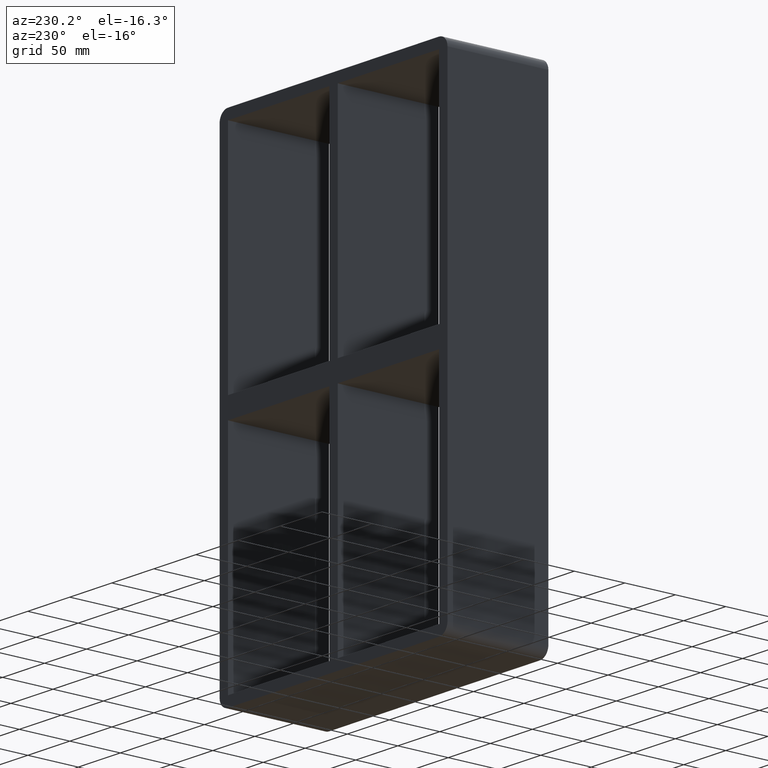
[diagram: clean part render]
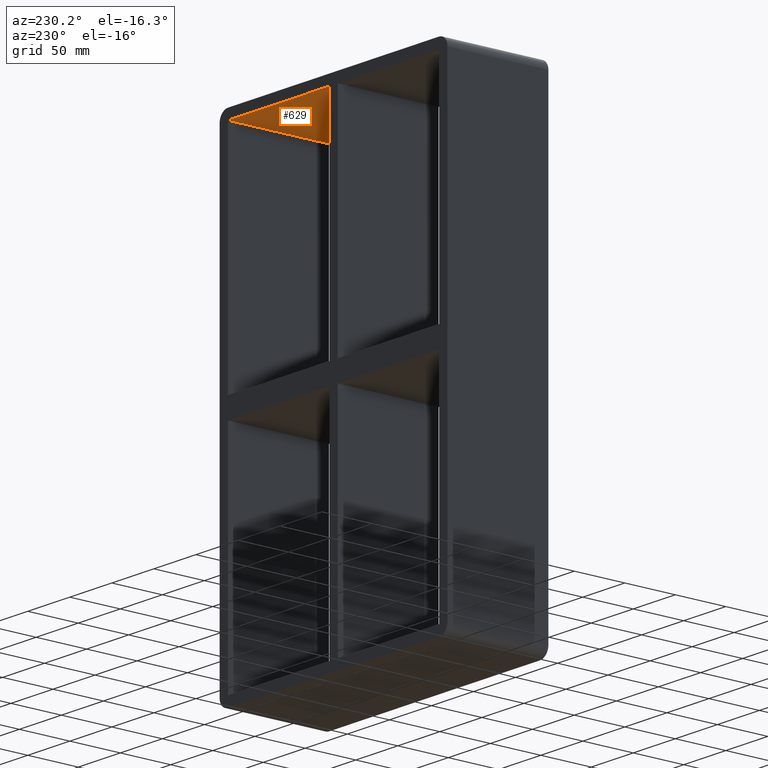
[diagram: same view with one face highlighted and labeled with its STEP entity id]
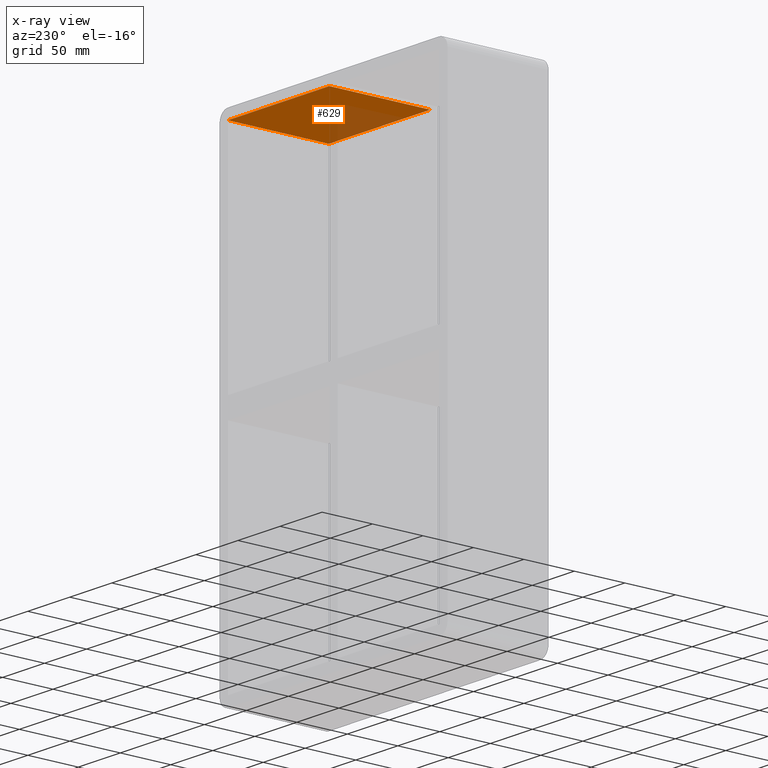
[diagram: x-ray of the same camera — body ghosted, the highlighted face saturated]
A machine part, auxiliary view. The second image highlights one B-rep face of the part: STEP entity #629.
The next image is the same camera in x-ray: the body ghosted, the highlighted face saturated — about 27% of this face is hidden behind the body in this view.
In plain terms, the highlighted planar face has unit normal (0, 0, 1).
Its self-contained STEP definition (entity closure, byte-faithful):
#296=CARTESIAN_POINT('',(125.5,-3.0,228.0));
#297=VERTEX_POINT('',#296);
#304=CARTESIAN_POINT('',(125.5,97.0,228.0));
#305=VERTEX_POINT('',#304);
#306=CARTESIAN_POINT('',(125.5,-3.0,228.0));
#307=DIRECTION('',(0.0,1.0,0.0));
#308=VECTOR('',#307,100.0);
#309=LINE('',#306,#308);
#310=EDGE_CURVE('',#297,#305,#309,.T.);
#422=CARTESIAN_POINT('',(5.0,97.0,227.99999999999997));
#423=VERTEX_POINT('',#422);
#424=CARTESIAN_POINT('',(125.50000000000003,97.0,228.0));
#425=DIRECTION('',(-1.0,0.0,0.0));
#426=VECTOR('',#425,120.50000000000003);
#427=LINE('',#424,#426);
#428=EDGE_CURVE('',#305,#423,#427,.T.);
#507=CARTESIAN_POINT('',(5.0,-3.0,227.99999999999997));
#508=VERTEX_POINT('',#507);
#509=CARTESIAN_POINT('',(5.0,-3.0,228.0));
#510=DIRECTION('',(0.0,1.0,0.0));
#511=VECTOR('',#510,100.0);
#512=LINE('',#509,#511);
#513=EDGE_CURVE('',#508,#423,#512,.T.);
#613=CARTESIAN_POINT('',(-125.5,0.0,228.0));
#614=DIRECTION('',(0.0,0.0,1.0));
#615=DIRECTION('',(1.0,0.0,0.0));
#616=AXIS2_PLACEMENT_3D('',#613,#614,#615);
#617=PLANE('',#616);
#618=ORIENTED_EDGE('',*,*,#513,.T.);
#619=ORIENTED_EDGE('',*,*,#428,.F.);
#620=ORIENTED_EDGE('',*,*,#310,.F.);
#621=CARTESIAN_POINT('',(5.0,-3.0,228.0));
#622=DIRECTION('',(1.0,0.0,0.0));
#623=VECTOR('',#622,120.50000000000003);
#624=LINE('',#621,#623);
#625=EDGE_CURVE('',#508,#297,#624,.T.);
#626=ORIENTED_EDGE('',*,*,#625,.F.);
#627=EDGE_LOOP('',(#618,#619,#620,#626));
#628=FACE_OUTER_BOUND('',#627,.T.);
#629=ADVANCED_FACE('',(#628),#617,.F.);